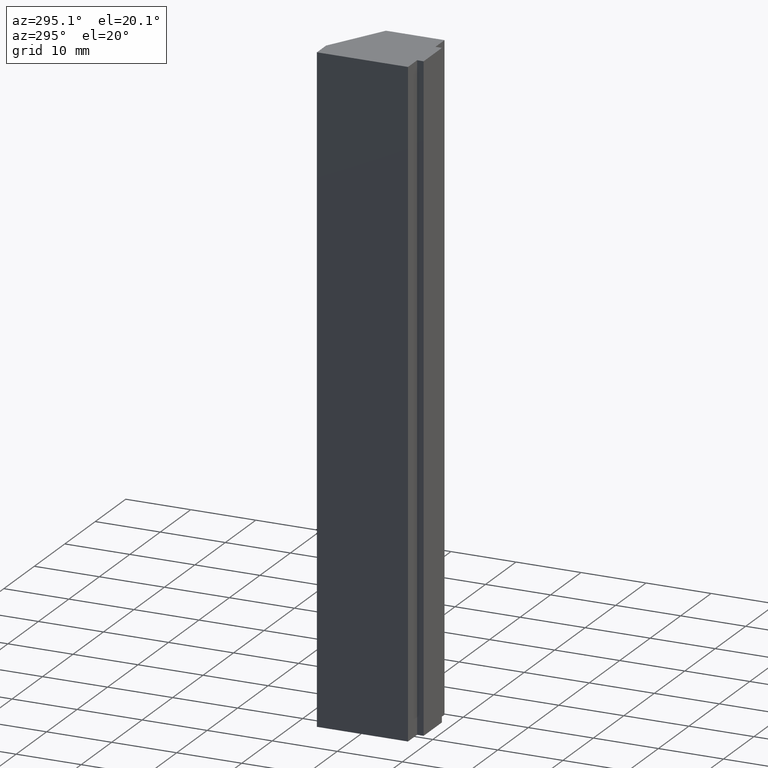
[diagram: clean part render]
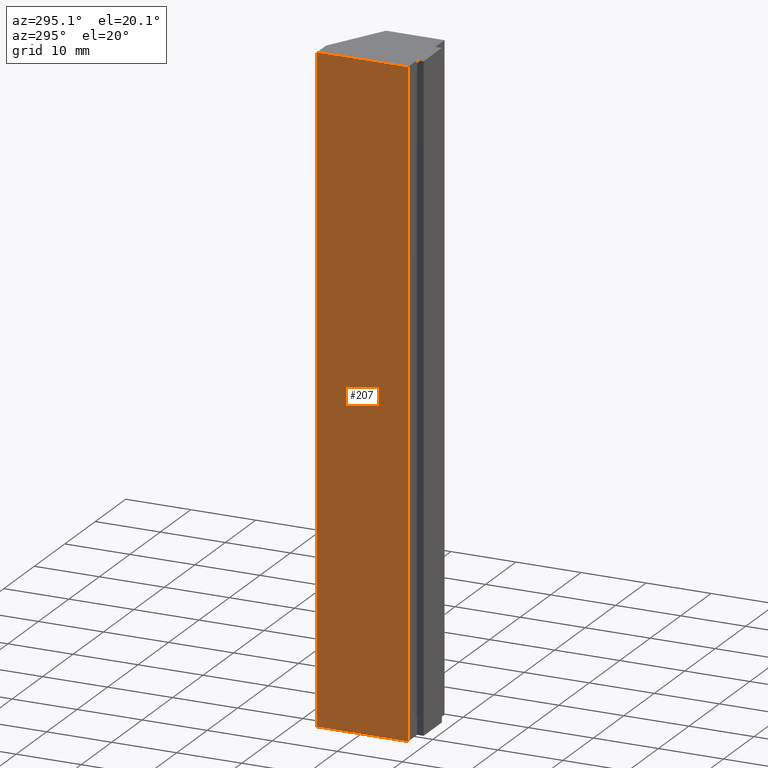
[diagram: same view with one face highlighted and labeled with its STEP entity id]
A machine part, auxiliary view. The second image highlights one B-rep face of the part: STEP entity #207.
In plain terms, the highlighted planar face has unit normal (-1, -0, 0).
Its self-contained STEP definition (entity closure, byte-faithful):
#21=FACE_OUTER_BOUND('',#32,.T.);
#32=EDGE_LOOP('',(#162,#163,#164,#165));
#44=LINE('',#311,#71);
#55=LINE('',#332,#82);
#56=LINE('',#335,#83);
#57=LINE('',#336,#84);
#71=VECTOR('',#254,10.);
#82=VECTOR('',#273,10.);
#83=VECTOR('',#276,10.);
#84=VECTOR('',#277,10.);
#98=VERTEX_POINT('',#308);
#99=VERTEX_POINT('',#310);
#105=VERTEX_POINT('',#330);
#106=VERTEX_POINT('',#334);
#116=EDGE_CURVE('',#99,#98,#44,.T.);
#127=EDGE_CURVE('',#105,#98,#55,.T.);
#128=EDGE_CURVE('',#105,#106,#56,.T.);
#129=EDGE_CURVE('',#106,#99,#57,.T.);
#162=ORIENTED_EDGE('',*,*,#128,.T.);
#163=ORIENTED_EDGE('',*,*,#129,.T.);
#164=ORIENTED_EDGE('',*,*,#116,.T.);
#165=ORIENTED_EDGE('',*,*,#127,.F.);
#196=PLANE('',#238);
#207=ADVANCED_FACE('',(#21),#196,.T.);
#238=AXIS2_PLACEMENT_3D('',#333,#274,#275);
#254=DIRECTION('',(2.37904933848248E-16,-1.,0.));
#273=DIRECTION('',(0.,0.,-1.));
#274=DIRECTION('center_axis',(-1.,-2.37904933848248E-16,0.));
#275=DIRECTION('ref_axis',(0.,0.,1.));
#276=DIRECTION('',(-2.37904933848248E-16,1.,0.));
#277=DIRECTION('',(0.,0.,-1.));
#308=CARTESIAN_POINT('',(-6.,0.999999999999999,-50.));
#310=CARTESIAN_POINT('',(-6.,15.,-50.));
#311=CARTESIAN_POINT('',(-6.,0.999999999999999,-50.));
#330=CARTESIAN_POINT('',(-6.,0.999999999999999,50.));
#332=CARTESIAN_POINT('',(-6.,0.999999999999999,0.));
#333=CARTESIAN_POINT('Origin',(-6.,0.999999999999999,0.));
#334=CARTESIAN_POINT('',(-6.,15.,50.));
#335=CARTESIAN_POINT('',(-6.,0.999999999999999,50.));
#336=CARTESIAN_POINT('',(-6.,15.,0.));